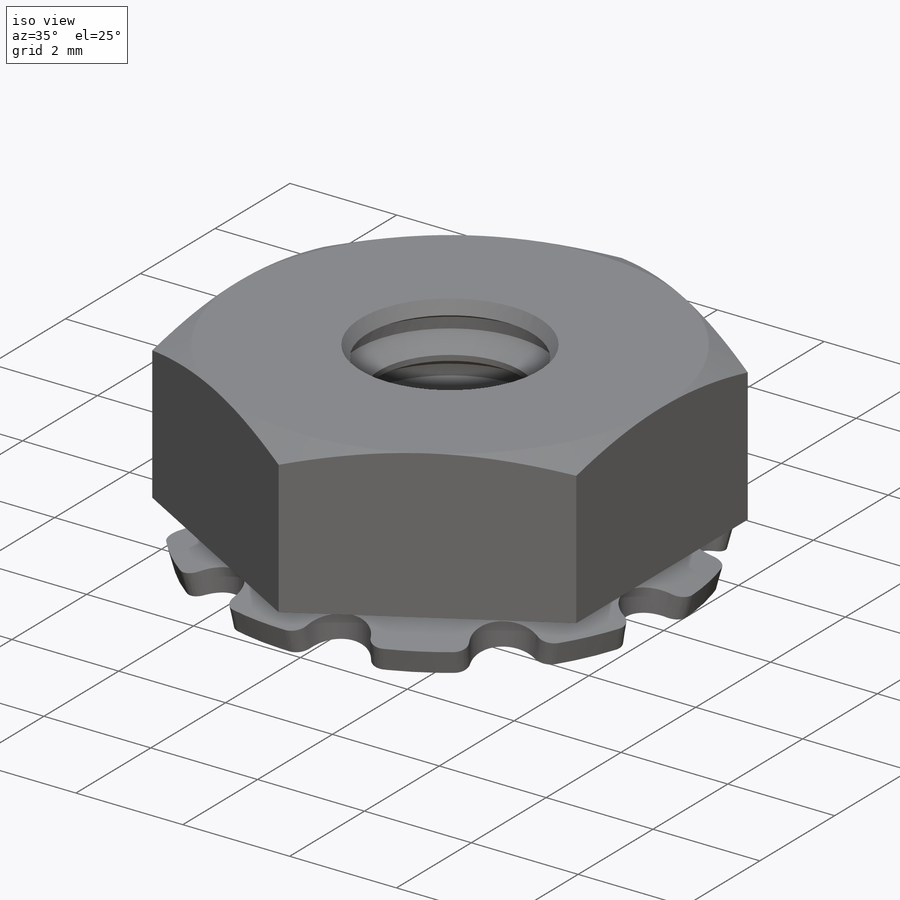
[diagram: iso view]
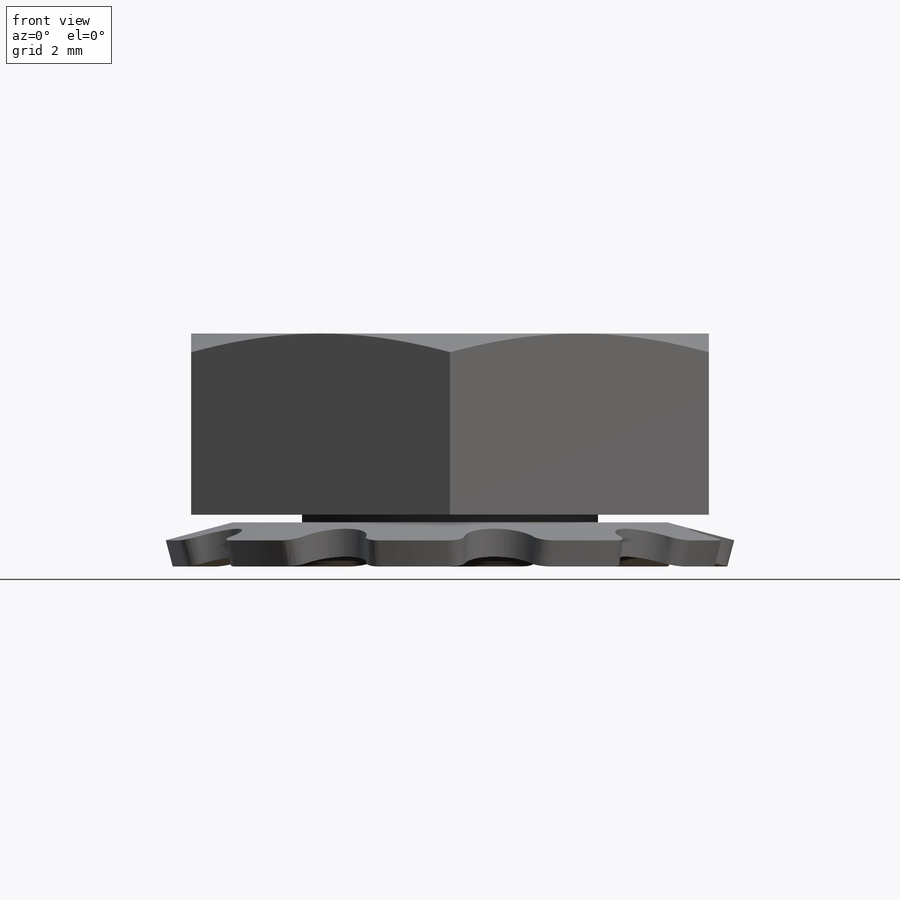
[diagram: front view]
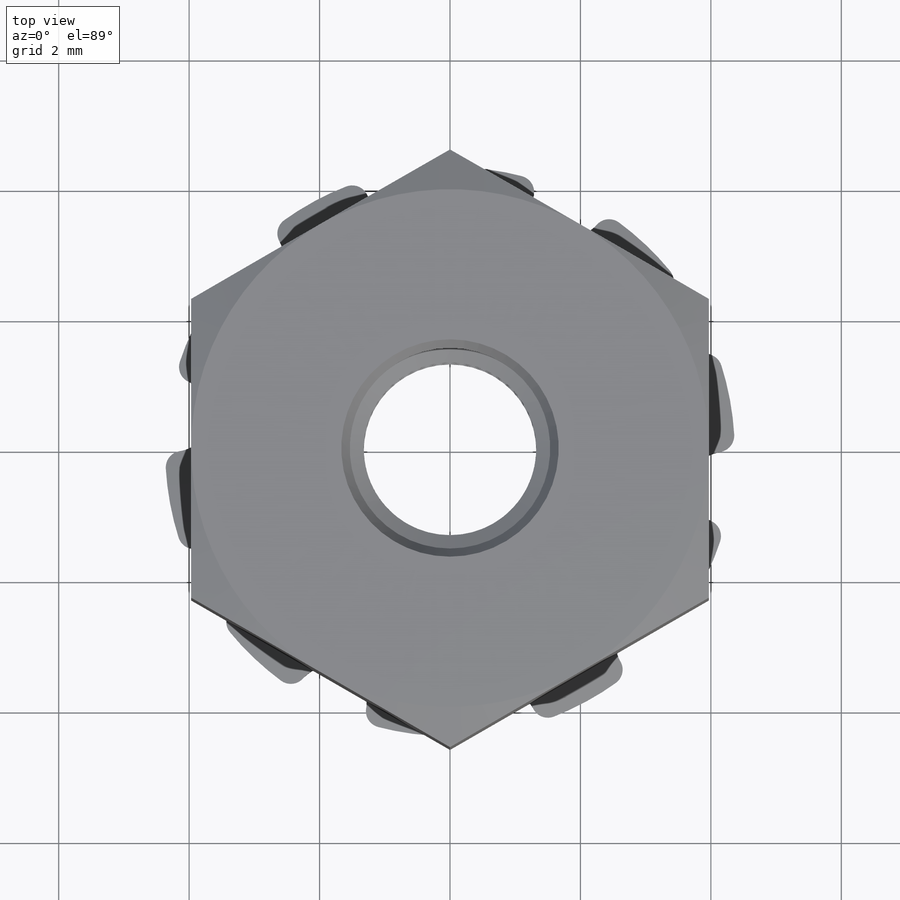
[diagram: top view]
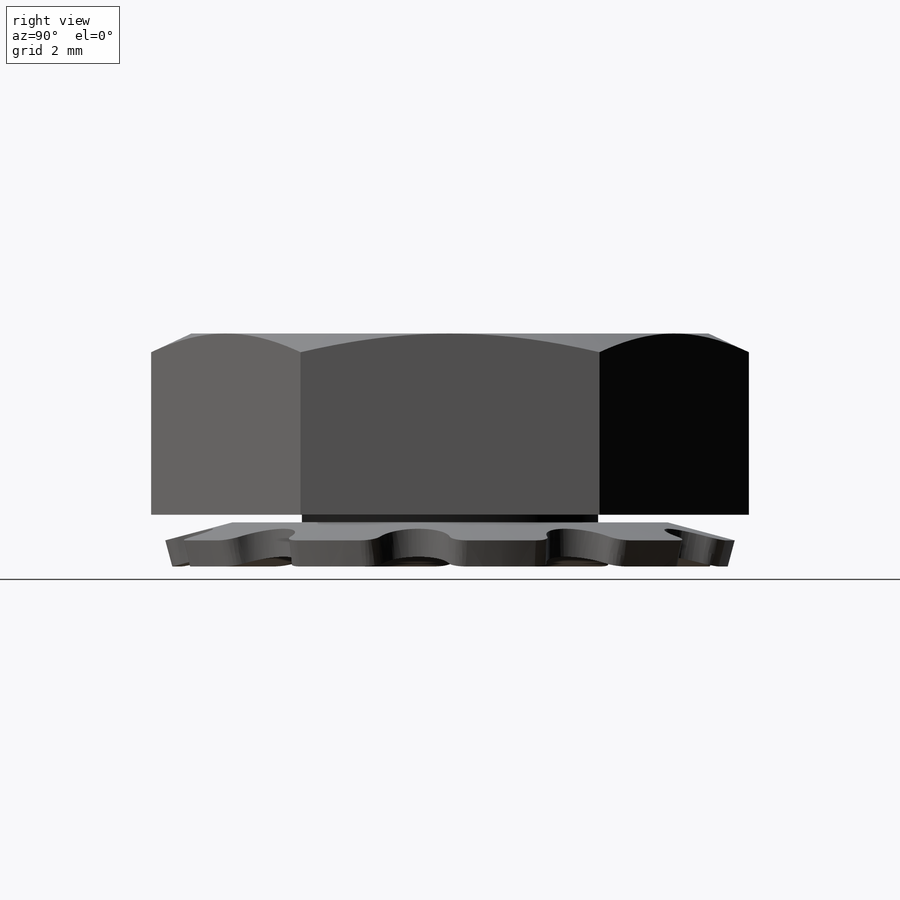
[diagram: right view]
SOLIDWORKS PART (.sldprt)
format: sldprt  version: not decoded by parser v0  size: 479,232 bytes
history: native  units: mm
features: sketch x6, cut_revolve x3, material x1, extrude x1, pattern_linear x1, revolve x1, cut_extrude x1, fillet x1, pattern_circular x1, plane x1 (+14 scaffold rows collapsed)
feature tree (31):
  scaffold x14  (default folders/planes/origin — collapsed)
  material  "Material <not specified>"
  sketch  "Sketch1"  dims[Hex Flats=7.9375mm]
  extrude  "Extrude1"  Depth=2.778125mm Height1=2.778125mm
  sketch  "Sketch2"  dims[c1.D1=~0.537208mm c2.D1=25.0deg c2.D2=7.9375mm]
  cut_revolve  "Cut-Revolve1"  Angle=360deg
  sketch  "Sketch3"  dims[c1.D1=~0.219193mm c2.D1=60.0deg c2.Major Dia=3.5052mm c2.D3=0.0625mm c2.D4=~0.198437mm c2.D5=0.5mm c3.D3=0.0625mm c3.Pitch=0.5mm c3.D5=0.3125mm c4.D3=~0.520727mm c5.D3=90.0deg c5.Pitch=~0.79375mm c5.D5=~0.083227mm c5.D2=~0.099219mm]
  cut_revolve  "Cut-Revolve3"  Angle=360deg
  pattern_linear  "LPattern2"  Count1=4 Count2=1 Spacing1=0.79375mm Spacing2=50mm
  sketch  "Sketch4"
  cut_revolve  "Cut-Revolve4"  Angle=360deg
  sketch  "Sketch12"  dims[c1.Washer Dia=~8.73125mm c1.D2=~0.595313mm c1.D3=~1.201857mm c2.D3=165.0deg c2.D1=0.381mm c2.D4=~0.074414mm c3.D1=~1.315831mm c4.D1=~189.37366deg c5.D1=~3.571875mm c5.D2=~0.890088mm c6.D2=165.0deg c6.D3=~0.414734mm c6.D4=~0.117323mm]
  revolve  "Revolve1"  Angle=360deg
  sketch  "Sketch13"  dims[c1.D1=~4.060386mm c2.D1=15.0deg]
  cut_extrude  "Cut-Extrude2"  [1 undecoded]
  fillet  "Fillet1"  Radius=0.254mm
  pattern_circular  "CirPattern6"  Count=10 Angle=360deg
  plane  "Plane1"  Offset=14.2748mm hex flats=14.2748mm hex flats/2=7.366mm
decode coverage: 13 of 15 modeling features carry decoded parameters
note: ~ marks probable driven/reference dimensions
note: 1 parameter value undecoded
note: suppression state not decoded; provenance and decode notes live in map.json
